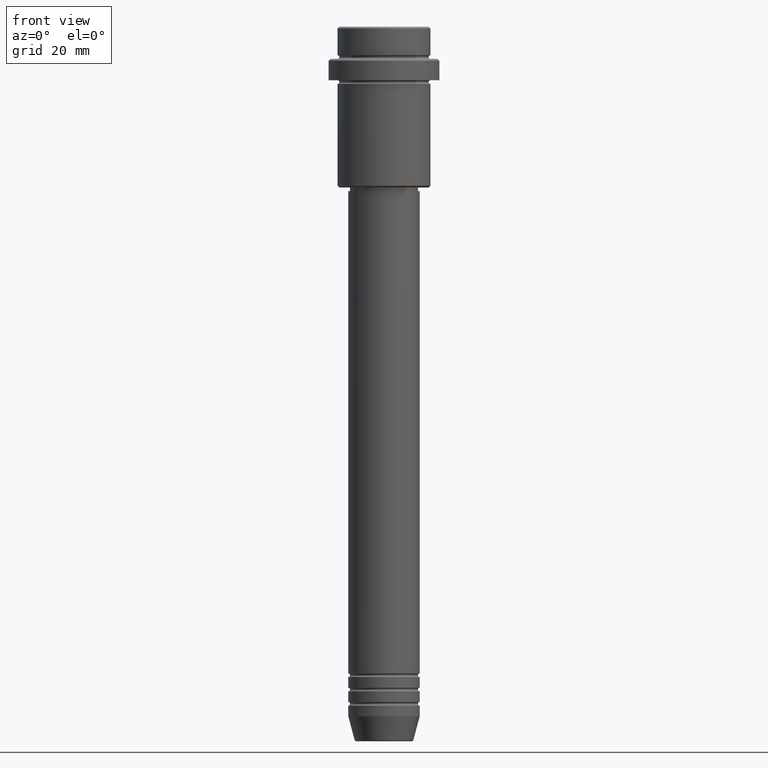
[diagram: clean part render]
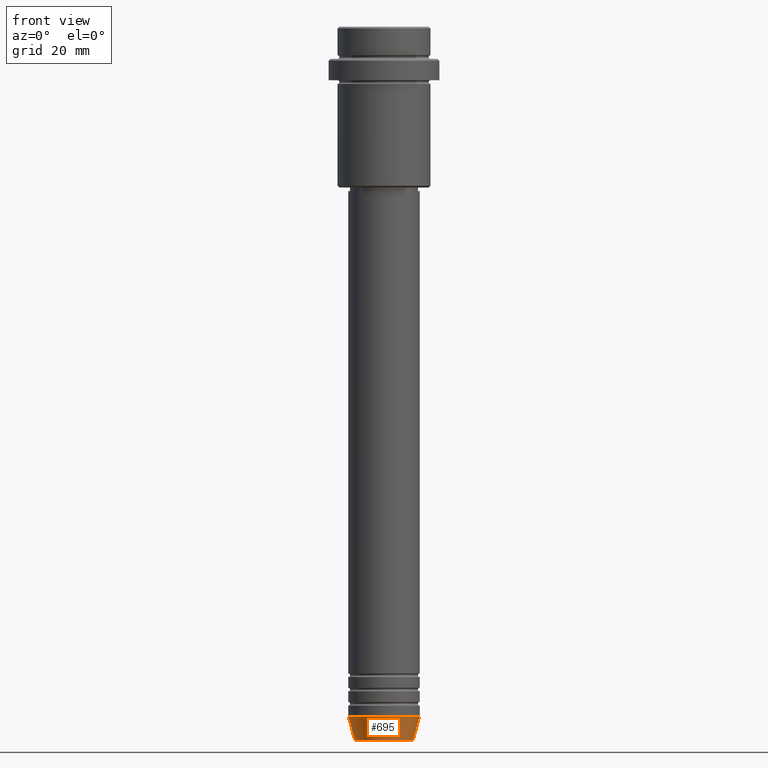
[diagram: same view with one face highlighted and labeled with its STEP entity id]
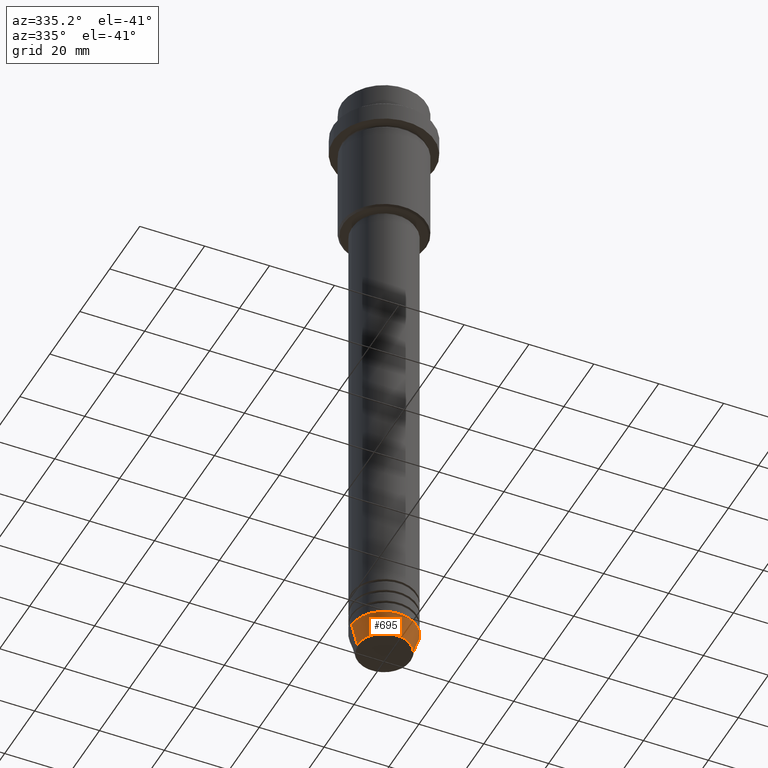
[diagram: same view with one face highlighted and labeled with its STEP entity id]
A machine part, front view. The second image highlights one B-rep face of the part: STEP entity #695.
A second angle (auxiliary view) of the same face is appended — the face is thin or edge-on in the first view.
In plain terms, the highlighted conical surface has half-angle 15 deg.
Its self-contained STEP definition (entity closure, byte-faithful):
#9 = VERTEX_POINT ( 'NONE', #215 ) ;
#10 = DIRECTION ( 'NONE',  ( -0.000000000000000000, -0.000000000000000000, 1.000000000000000000 ) ) ;
#11 = DIRECTION ( 'NONE',  ( 1.000000000000000000, 0.000000000000000000, 0.000000000000000000 ) ) ;
#22 = DIRECTION ( 'NONE',  ( -0.000000000000000000, -0.000000000000000000, 1.000000000000000000 ) ) ;
#80 = VERTEX_POINT ( 'NONE', #586 ) ;
#84 = EDGE_LOOP ( 'NONE', ( #565, #1035, #904, #1411 ) ) ;
#128 = DIRECTION ( 'NONE',  ( 0.2588190451025213501, 0.000000000000000000, 0.9659258262890680902 ) ) ;
#162 = DIRECTION ( 'NONE',  ( 1.000000000000000000, 0.000000000000000000, 0.000000000000000000 ) ) ;
#179 = CIRCLE ( 'NONE', #980, 8.223655072137191269 ) ;
#215 = CARTESIAN_POINT ( 'NONE',  ( 10.00000000000000000, 0.000000000000000000, -193.0000000000000000 ) ) ;
#270 = CARTESIAN_POINT ( 'NONE',  ( -10.00000000000000000, 1.224646799147353256E-15, -193.0000000000000000 ) ) ;
#286 = CARTESIAN_POINT ( 'NONE',  ( 0.000000000000000000, 0.000000000000000000, -193.0000000000000000 ) ) ;
#301 = VECTOR ( 'NONE', #717, 1000.000000000000000 ) ;
#329 = DIRECTION ( 'NONE',  ( 1.000000000000000000, 0.000000000000000000, 0.000000000000000000 ) ) ;
#534 = CARTESIAN_POINT ( 'NONE',  ( 8.223655072137191269, 0.000000000000000000, -199.6294095225512706 ) ) ;
#565 = ORIENTED_EDGE ( 'NONE', *, *, #1130, .F. ) ;
#586 = CARTESIAN_POINT ( 'NONE',  ( -8.223655072137191269, 1.115877042642912054E-15, -199.6294095225512706 ) ) ;
#679 = CARTESIAN_POINT ( 'NONE',  ( 0.000000000000000000, 0.000000000000000000, -199.6294095225512706 ) ) ;
#695 = ADVANCED_FACE ( 'NONE', ( #1241 ), #1005, .T. ) ;
#717 = DIRECTION ( 'NONE',  ( -0.2588190451025213501, 3.169619151431772337E-17, 0.9659258262890680902 ) ) ;
#749 = CARTESIAN_POINT ( 'NONE',  ( -10.00000000000000000, 1.224646799147353256E-15, -193.0000000000000000 ) ) ;
#760 = AXIS2_PLACEMENT_3D ( 'NONE', #877, #10, #329 ) ;
#876 = VERTEX_POINT ( 'NONE', #534 ) ;
#877 = CARTESIAN_POINT ( 'NONE',  ( 0.000000000000000000, 0.000000000000000000, -193.0000000000000000 ) ) ;
#904 = ORIENTED_EDGE ( 'NONE', *, *, #1017, .T. ) ;
#974 = EDGE_CURVE ( 'NONE', #80, #876, #179, .T. ) ;
#980 = AXIS2_PLACEMENT_3D ( 'NONE', #679, #22, #11 ) ;
#989 = CARTESIAN_POINT ( 'NONE',  ( 10.00000000000000000, 0.000000000000000000, -193.0000000000000000 ) ) ;
#1005 = CONICAL_SURFACE ( 'NONE', #1091, 10.00000000000000000, 0.2617993877991500740 ) ;
#1017 = EDGE_CURVE ( 'NONE', #876, #9, #1216, .T. ) ;
#1035 = ORIENTED_EDGE ( 'NONE', *, *, #974, .T. ) ;
#1091 = AXIS2_PLACEMENT_3D ( 'NONE', #286, #1366, #162 ) ;
#1119 = CIRCLE ( 'NONE', #760, 10.00000000000000000 ) ;
#1130 = EDGE_CURVE ( 'NONE', #80, #1292, #1136, .T. ) ;
#1136 = LINE ( 'NONE', #270, #301 ) ;
#1216 = LINE ( 'NONE', #989, #1410 ) ;
#1241 = FACE_OUTER_BOUND ( 'NONE', #84, .T. ) ;
#1292 = VERTEX_POINT ( 'NONE', #749 ) ;
#1366 = DIRECTION ( 'NONE',  ( -0.000000000000000000, -0.000000000000000000, 1.000000000000000000 ) ) ;
#1407 = EDGE_CURVE ( 'NONE', #1292, #9, #1119, .T. ) ;
#1410 = VECTOR ( 'NONE', #128, 1000.000000000000000 ) ;
#1411 = ORIENTED_EDGE ( 'NONE', *, *, #1407, .F. ) ;